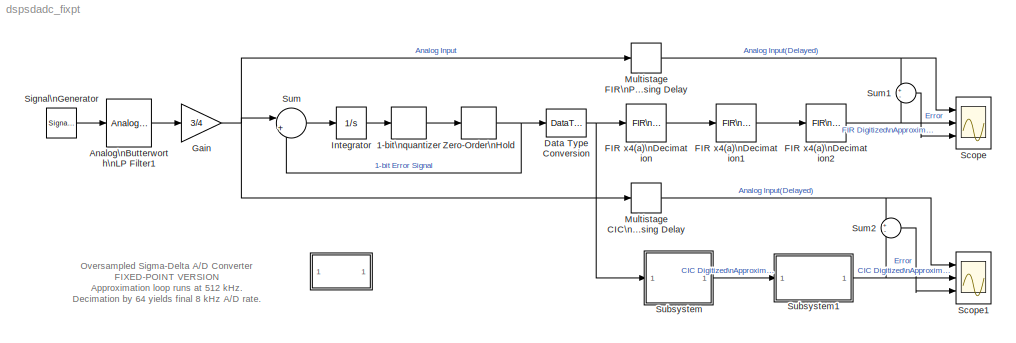
MODEL dspsdadc_fixpt
KIND model
BLOCK [SubSystem]  
  MaskDisplay = disp('Info')
  MaskIconFrame = on
  MaskIconOpaque = on
  MaskIconRotate = none
  MaskIconUnits = autoscale
  MaskType = Sigma-delta demo Info block
  Ports = []
  TreatAsAtomicUnit = off
BLOCK [Signum] 1-bit\nquantizer
BLOCK [Reference] Analog\nButterworth\nLP Filter1  REF=dspddes2/Analog\nFilter Design
  N = 5
  Ports = [1, 1]
  Rp = 3
  Rs = 40
  ShowPortLabels = on
  SourceBlock = dspddes2/Analog\nFilter Design
  SourceType = Analog Filter Design
  Whi = 80
  Wlo = 2*pi*400
  filttype = Lowpass
  method = Butterworth
BLOCK [DataTypeConversion] Data Type Conversion
  OutDataType = sfix(2)
  OutDataTypeMode = Specify via dialog
  RndMeth = Floor
  SaturateOnIntegerOverflow = off
BLOCK [Reference] FIR x4(a)\nDecimation  REF=dspmlti3/FIR\nDecimation
  D = 4
  Ports = [1, 1]
  SourceBlock = dspmlti3/FIR\nDecimation
  SourceType = FIR Decimation
  accumFracLength = 10
  accumMode = Same as product output
  accumWordLength = 20
  additionalParams = on
  allowOverrides = on
  firstCoeffFracLength = 15
  firstCoeffMode = Binary point scaling
  firstCoeffWordLength = 16
  framing = Maintain input frame size
  h = fir1(31,0.15)
  outputBufInitCond = 0
  outputFracLength = 14
  outputMode = Same as accumulator
  outputWordLength = 16
  overflowMode = off
  prodOutputFracLength = 14
  prodOutputMode = Binary point scaling
  prodOutputWordLength = 16
  roundingMode = Floor
BLOCK [Reference] FIR x4(a)\nDecimation1  REF=dspmlti3/FIR\nDecimation
  D = 4
  Ports = [1, 1]
  SourceBlock = dspmlti3/FIR\nDecimation
  SourceType = FIR Decimation
  accumFracLength = 10
  accumMode = Same as product output
  accumWordLength = 20
  additionalParams = on
  allowOverrides = on
  firstCoeffFracLength = 15
  firstCoeffMode = Binary point scaling
  firstCoeffWordLength = 16
  framing = Maintain input frame size
  h = fir1(31,0.15)
  outputBufInitCond = 0
  outputFracLength = 14
  outputMode = Same as accumulator
  outputWordLength = 16
  overflowMode = off
  prodOutputFracLength = 14
  prodOutputMode = Binary point scaling
  prodOutputWordLength = 16
  roundingMode = Floor
BLOCK [Reference] FIR x4(a)\nDecimation2  REF=dspmlti3/FIR\nDecimation
  D = 4
  Ports = [1, 1]
  SourceBlock = dspmlti3/FIR\nDecimation
  SourceType = FIR Decimation
  accumFracLength = 10
  accumMode = Same as product output
  accumWordLength = 20
  additionalParams = on
  allowOverrides = on
  firstCoeffFracLength = 15
  firstCoeffMode = Binary point scaling
  firstCoeffWordLength = 16
  framing = Maintain input frame size
  h = fir1(31,0.15)
  outputBufInitCond = 0
  outputFracLength = 14
  outputMode = Same as accumulator
  outputWordLength = 16
  overflowMode = off
  prodOutputFracLength = 14
  prodOutputMode = Binary point scaling
  prodOutputWordLength = 16
  roundingMode = Floor
BLOCK [Gain] Gain
  Gain = 3/4
BLOCK [Integrator] Integrator
  Ports = [1, 1]
BLOCK [TransportDelay] Multistage CIC\nProcessing Delay
  DelayTime = 250/512000
BLOCK [TransportDelay] Multistage FIR\nProcessing Delay
  DelayTime = 357/512000
BLOCK [Scope] Scope
  DataFormat = StructureWithTime
  NumInputPorts = 3
  Ports = [3]
  SaveName = ScopeData1
  TimeRange = 0.025
  YMax = 1.1~1.1~0.25
  YMin = -1.1~-1.1~-0.25
  ZoomMode = xonly
BLOCK [Scope] Scope1
  DataFormat = StructureWithTime
  NumInputPorts = 3
  Ports = [3]
  TimeRange = 0.025
  YMax = 1.1~1.1~0.25
  YMin = -1.1~-1.1~-0.25
  ZoomMode = xonly
BLOCK [SignalGenerator] Signal\nGenerator
  Frequency = 80
  Ports = [0, 1]
  WaveForm = square
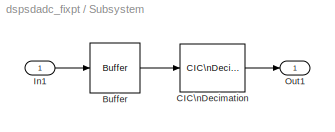
BLOCK [SubSystem] Subsystem
  MaskDisplay = disp('CIC\\nDecimation\\nFilter')
  MaskIconFrame = on
  MaskIconOpaque = on
  MaskIconRotate = none
  MaskIconUnits = autoscale
  Ports = [1, 1]
  TreatAsAtomicUnit = off
BLOCK [Reference] Subsystem/Buffer  REF=dspbuff3/Buffer
  N = 64
  Ports = [1, 1]
  SourceBlock = dspbuff3/Buffer
  SourceType = Buffer
  V = 0
  ic = 0
BLOCK [Reference] Subsystem/CIC\nDecimation  REF=dspmlti4/CIC\nDecimation
  BPS = [32 30 24 20 16 16 16 16 16 16]
  M = 1
  N = 5
  Ports = [1, 1]
  R = 64
  SourceBlock = dspmlti4/CIC\nDecimation
  SourceType = CIC Decimation
  UserData = DataTag0
  UserDataPersistent = on
  filtFrom = Dialog
  filtobj = Hm_decim
  framing = Maintain input frame rate
  ftype = Zero-latency decimator
  launchFVT = off
  outputMode = Same as final filter stage
  outputWordLength = 16
  resampPhase = 0
BLOCK [Inport] Subsystem/In1
  IconDisplay = Port number
BLOCK [Outport] Subsystem/Out1
  IconDisplay = Port number
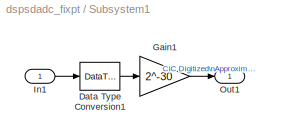
BLOCK [SubSystem] Subsystem1
  MaskDisplay = disp('Rescaling for\\nComparison')
  MaskIconFrame = on
  MaskIconOpaque = on
  MaskIconRotate = none
  MaskIconUnits = autoscale
  Ports = [1, 1]
  TreatAsAtomicUnit = off
BLOCK [DataTypeConversion] Subsystem1/Data Type Conversion1
  OutDataType = sfix(2)
  OutDataTypeMode = single
  RndMeth = Floor
  SaturateOnIntegerOverflow = off
BLOCK [Gain] Subsystem1/Gain1
  Gain = 2^-30
BLOCK [Inport] Subsystem1/In1
  IconDisplay = Port number
BLOCK [Outport] Subsystem1/Out1
  IconDisplay = Port number
BLOCK [Sum] Sum
  IconShape = round
  Inputs = |+-
  Ports = [2, 1]
BLOCK [Sum] Sum1
  IconShape = round
  InputSameDT = off
  Inputs = +-
  OutDataTypeMode = Inherit via internal rule
  Ports = [2, 1]
  RndMeth = Nearest
BLOCK [Sum] Sum2
  IconShape = round
  InputSameDT = off
  Inputs = +-
  OutDataTypeMode = Inherit via internal rule
  Ports = [2, 1]
  RndMeth = Nearest
BLOCK [ZeroOrderHold] Zero-Order\nHold
  SampleTime = 1/(512*1024)
ANNOTATION (root): Oversampled Sigma-Delta A/D Converter\nFIXED-POINT VERSION\nApproximation loop runs at 512 kHz.\nDecimation by 64 yields final 8 kHz A/D rate.
ANNOTATION  : Oversampled Sigma-Delta A/D Converter\n\nThe Oversampled Sigma-Delta A/D Converter is a noise-shaping quantizer. The main purpose of \nnoise-shaping is to reshape the spectrum of quantization noise so that most of the noise is filtered\n out of the relevant frequency band (say the audio band for speech applications).\n\nThe main objective here is to trade off bits for samples - that is, increasing...<+1605ch>
LINE 1-bit\nquantizer:1 -> Zero-Order\nHold:1
LINE Analog\nButterworth\nLP Filter1:1 -> Gain:1
NET Data Type Conversion:1 -> FIR x4(a)\nDecimation:1, Subsystem:1
LINE FIR x4(a)\nDecimation1:1 -> FIR x4(a)\nDecimation2:1
NET FIR x4(a)\nDecimation2:1 -> Scope:2, Sum1:2
LINE FIR x4(a)\nDecimation:1 -> FIR x4(a)\nDecimation1:1
NET Gain:1 -> Multistage CIC\nProcessing Delay:1, Multistage FIR\nProcessing Delay:1, Sum:1
LINE Integrator:1 -> 1-bit\nquantizer:1
NET Multistage CIC\nProcessing Delay:1 -> Scope1:1, Sum2:1
NET Multistage FIR\nProcessing Delay:1 -> Scope:1, Sum1:1
LINE Signal\nGenerator:1 -> Analog\nButterworth\nLP Filter1:1
LINE Subsystem/Buffer:1 -> Subsystem/CIC\nDecimation:1
LINE Subsystem/CIC\nDecimation:1 -> Subsystem/Out1:1
LINE Subsystem/In1:1 -> Subsystem/Buffer:1
LINE Subsystem1/Data Type Conversion1:1 -> Subsystem1/Gain1:1
LINE Subsystem1/Gain1:1 -> Subsystem1/Out1:1
LINE Subsystem1/In1:1 -> Subsystem1/Data Type Conversion1:1
NET Subsystem1:1 -> Scope1:2, Sum2:2
LINE Subsystem:1 -> Subsystem1:1
LINE Sum1:1 -> Scope:3
LINE Sum2:1 -> Scope1:3
LINE Sum:1 -> Integrator:1
NET Zero-Order\nHold:1 -> Data Type Conversion:1, Sum:2
note: NET lines group one-source signal fan-out (src -> all destinations, sorted); 1:1 wires keep LINE
